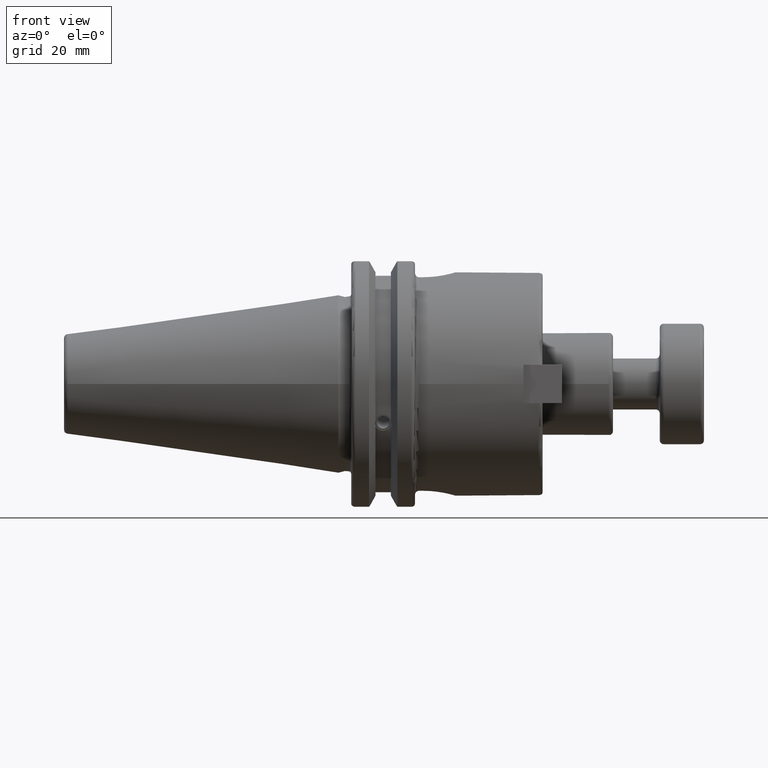
[diagram: clean part render]
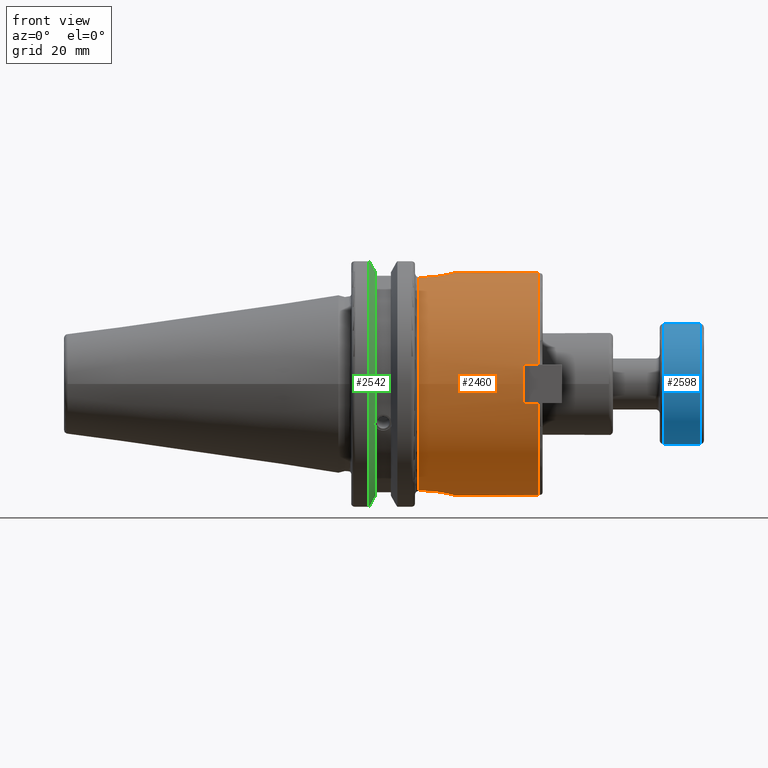
[diagram: same view with three faces highlighted in distinct colors, each labeled with its STEP entity id]
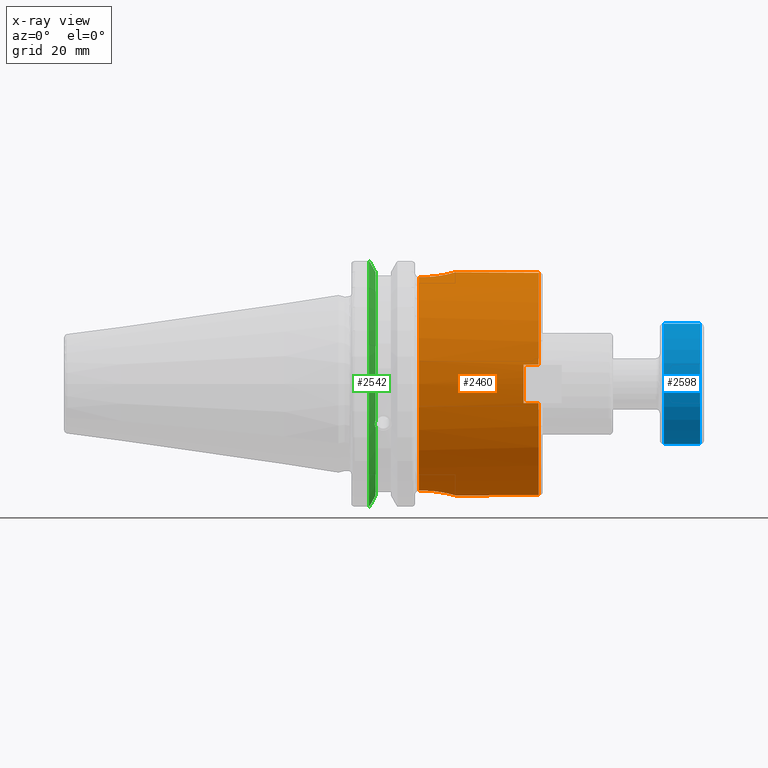
[diagram: x-ray of the same camera — body ghosted, the three highlighted faces saturated]
A machine part, front view with three faces highlighted in distinct colors.
The next image is the same camera in x-ray (body ghosted, the three faces saturated) — at least one of them is partly hidden behind the body in this view.
Their STEP definitions:

[orange] entity #2460 — the highlighted cylindrical surface (bore or boss wall) has radius 27.79 mm, axis along (1, 0, 0).
#112=CYLINDRICAL_SURFACE('',#2716,27.79);
#195=CIRCLE('',#2706,27.79);
#197=CIRCLE('',#2708,27.79);
#201=CIRCLE('',#2717,27.79);
#202=CIRCLE('',#2718,27.79);
#203=CIRCLE('',#2719,27.79);
#204=CIRCLE('',#2720,27.79);
#205=CIRCLE('',#2721,27.79);
#206=CIRCLE('',#2722,27.79);
#331=FACE_OUTER_BOUND('',#479,.T.);
#479=EDGE_LOOP('',(#1661,#1662,#1663,#1664,#1665,#1666,#1667,#1668,#1669,
#1670,#1671,#1672,#1673,#1674,#1675,#1676,#1677,#1678,#1679,#1680));
#646=LINE('',#3805,#810);
#651=LINE('',#3840,#815);
#653=LINE('',#3844,#817);
#654=LINE('',#3848,#818);
#655=LINE('',#3869,#819);
#656=LINE('',#3873,#820);
#657=LINE('',#3894,#821);
#658=LINE('',#3899,#822);
#659=LINE('',#3903,#823);
#810=VECTOR('',#3017,10.);
#815=VECTOR('',#3044,10.);
#817=VECTOR('',#3048,27.79);
#818=VECTOR('',#3051,10.);
#819=VECTOR('',#3052,10.);
#820=VECTOR('',#3055,10.);
#821=VECTOR('',#3056,10.);
#822=VECTOR('',#3061,10.);
#823=VECTOR('',#3064,10.);
#973=B_SPLINE_CURVE_WITH_KNOTS('',3,(#3850,#3851,#3852,#3853,#3854,#3855,
#3856,#3857,#3858,#3859,#3860,#3861,#3862,#3863,#3864,#3865,#3866,#3867),
 .UNSPECIFIED.,.F.,.F.,(4,2,2,2,2,2,2,2,4),(-2.48404790879586,-2.17349897513637,
-1.86295004147687,-1.5524869979374,-1.24202395439793,-0.931560910858459,
-0.621097867318987,-0.310548933659494,0.),.UNSPECIFIED.);
#974=B_SPLINE_CURVE_WITH_KNOTS('',3,(#3875,#3876,#3877,#3878,#3879,#3880,
#3881,#3882,#3883,#3884,#3885,#3886,#3887,#3888,#3889,#3890,#3891,#3892),
 .UNSPECIFIED.,.F.,.F.,(4,2,2,2,2,2,2,2,4),(-2.48404790879586,-2.17349897513637,
-1.86295004147687,-1.5524869979374,-1.24202395439793,-0.931560910858459,
-0.621097867318988,-0.310548933659494,0.),.UNSPECIFIED.);
#1012=VERTEX_POINT('',#3788);
#1015=VERTEX_POINT('',#3803);
#1016=VERTEX_POINT('',#3807);
#1018=VERTEX_POINT('',#3811);
#1023=VERTEX_POINT('',#3828);
#1025=VERTEX_POINT('',#3843);
#1026=VERTEX_POINT('',#3845);
#1027=VERTEX_POINT('',#3847);
#1028=VERTEX_POINT('',#3849);
#1029=VERTEX_POINT('',#3868);
#1030=VERTEX_POINT('',#3870);
#1031=VERTEX_POINT('',#3872);
#1032=VERTEX_POINT('',#3874);
#1033=VERTEX_POINT('',#3893);
#1034=VERTEX_POINT('',#3896);
#1035=VERTEX_POINT('',#3898);
#1036=VERTEX_POINT('',#3900);
#1037=VERTEX_POINT('',#3902);
#1263=EDGE_CURVE('',#1012,#1015,#646,.T.);
#1264=EDGE_CURVE('',#1015,#1016,#195,.T.);
#1267=EDGE_CURVE('',#1016,#1018,#197,.T.);
#1275=EDGE_CURVE('',#1018,#1023,#651,.T.);
#1277=EDGE_CURVE('',#1016,#1025,#653,.T.);
#1278=EDGE_CURVE('',#1026,#1025,#201,.T.);
#1279=EDGE_CURVE('',#1026,#1027,#654,.T.);
#1280=EDGE_CURVE('',#1027,#1028,#973,.T.);
#1281=EDGE_CURVE('',#1028,#1029,#655,.T.);
#1282=EDGE_CURVE('',#1030,#1029,#202,.T.);
#1283=EDGE_CURVE('',#1030,#1031,#656,.T.);
#1284=EDGE_CURVE('',#1031,#1032,#974,.T.);
#1285=EDGE_CURVE('',#1032,#1033,#657,.T.);
#1286=EDGE_CURVE('',#1025,#1033,#203,.T.);
#1287=EDGE_CURVE('',#1034,#1023,#204,.T.);
#1288=EDGE_CURVE('',#1034,#1035,#658,.T.);
#1289=EDGE_CURVE('',#1035,#1036,#205,.T.);
#1290=EDGE_CURVE('',#1036,#1037,#659,.T.);
#1291=EDGE_CURVE('',#1012,#1037,#206,.T.);
#1661=ORIENTED_EDGE('',*,*,#1263,.T.);
#1662=ORIENTED_EDGE('',*,*,#1264,.T.);
#1663=ORIENTED_EDGE('',*,*,#1277,.T.);
#1664=ORIENTED_EDGE('',*,*,#1278,.F.);
#1665=ORIENTED_EDGE('',*,*,#1279,.T.);
#1666=ORIENTED_EDGE('',*,*,#1280,.T.);
#1667=ORIENTED_EDGE('',*,*,#1281,.T.);
#1668=ORIENTED_EDGE('',*,*,#1282,.F.);
#1669=ORIENTED_EDGE('',*,*,#1283,.T.);
#1670=ORIENTED_EDGE('',*,*,#1284,.T.);
#1671=ORIENTED_EDGE('',*,*,#1285,.T.);
#1672=ORIENTED_EDGE('',*,*,#1286,.F.);
#1673=ORIENTED_EDGE('',*,*,#1277,.F.);
#1674=ORIENTED_EDGE('',*,*,#1267,.T.);
#1675=ORIENTED_EDGE('',*,*,#1275,.T.);
#1676=ORIENTED_EDGE('',*,*,#1287,.F.);
#1677=ORIENTED_EDGE('',*,*,#1288,.T.);
#1678=ORIENTED_EDGE('',*,*,#1289,.T.);
#1679=ORIENTED_EDGE('',*,*,#1290,.T.);
#1680=ORIENTED_EDGE('',*,*,#1291,.F.);
#2460=ADVANCED_FACE('',(#331),#112,.T.);
#2706=AXIS2_PLACEMENT_3D('',#3808,#3020,#3021);
#2708=AXIS2_PLACEMENT_3D('',#3813,#3025,#3026);
#2716=AXIS2_PLACEMENT_3D('',#3842,#3046,#3047);
#2717=AXIS2_PLACEMENT_3D('',#3846,#3049,#3050);
#2718=AXIS2_PLACEMENT_3D('',#3871,#3053,#3054);
#2719=AXIS2_PLACEMENT_3D('',#3895,#3057,#3058);
#2720=AXIS2_PLACEMENT_3D('',#3897,#3059,#3060);
#2721=AXIS2_PLACEMENT_3D('',#3901,#3062,#3063);
#2722=AXIS2_PLACEMENT_3D('',#3904,#3065,#3066);
#3017=DIRECTION('',(-1.,0.,0.));
#3020=DIRECTION('center_axis',(-1.,0.,0.));
#3021=DIRECTION('ref_axis',(0.,1.,0.));
#3025=DIRECTION('center_axis',(-1.,0.,0.));
#3026=DIRECTION('ref_axis',(0.,1.,0.));
#3044=DIRECTION('',(1.,0.,0.));
#3046=DIRECTION('center_axis',(1.,0.,0.));
#3047=DIRECTION('ref_axis',(0.,1.,0.));
#3048=DIRECTION('',(-1.,0.,0.));
#3049=DIRECTION('center_axis',(-1.,0.,0.));
#3050=DIRECTION('ref_axis',(0.,-1.,-1.22464679914735E-16));
#3051=DIRECTION('',(1.,0.,0.));
#3052=DIRECTION('',(-1.,0.,0.));
#3053=DIRECTION('center_axis',(-1.,0.,0.));
#3054=DIRECTION('ref_axis',(0.,1.,0.));
#3055=DIRECTION('',(1.,0.,0.));
#3056=DIRECTION('',(-1.,0.,0.));
#3057=DIRECTION('center_axis',(-1.,0.,0.));
#3058=DIRECTION('ref_axis',(0.,-1.,-1.22464679914735E-16));
#3059=DIRECTION('center_axis',(1.,0.,0.));
#3060=DIRECTION('ref_axis',(0.,-1.,1.83697019872103E-16));
#3061=DIRECTION('',(-1.,0.,0.));
#3062=DIRECTION('center_axis',(-1.,0.,0.));
#3063=DIRECTION('ref_axis',(0.,1.,0.));
#3064=DIRECTION('',(1.,0.,0.));
#3065=DIRECTION('center_axis',(1.,0.,0.));
#3066=DIRECTION('ref_axis',(0.,-1.,1.83697019872103E-16));
#3788=CARTESIAN_POINT('',(49.8,-27.3793078802222,-4.76));
#3803=CARTESIAN_POINT('',(46.03,-27.3793078802222,-4.76));
#3805=CARTESIAN_POINT('',(34.925,-27.3793078802222,-4.76));
#3807=CARTESIAN_POINT('',(46.03,-27.79,-3.40329345483049E-15));
#3808=CARTESIAN_POINT('Origin',(46.03,0.,0.));
#3811=CARTESIAN_POINT('',(46.03,-27.3793078802222,4.76));
#3813=CARTESIAN_POINT('Origin',(46.03,0.,0.));
#3828=CARTESIAN_POINT('',(49.8,-27.3793078802222,4.76));
#3840=CARTESIAN_POINT('',(34.925,-27.3793078802222,4.76));
#3842=CARTESIAN_POINT('Origin',(34.925,0.,0.));
#3843=CARTESIAN_POINT('',(20.05,-27.79,-3.40329345483049E-15));
#3844=CARTESIAN_POINT('',(34.925,-27.79,-3.40329345483049E-15));
#3845=CARTESIAN_POINT('',(20.05,-8.18999999999999,-26.5557526724437));
#3846=CARTESIAN_POINT('Origin',(20.05,0.,0.));
#3847=CARTESIAN_POINT('',(20.985,-8.19,-26.5557526724437));
#3848=CARTESIAN_POINT('',(34.925,-8.18999999999999,-26.5557526724437));
#3849=CARTESIAN_POINT('',(20.985,8.19000000000002,-26.5557526724437));
#3850=CARTESIAN_POINT('Ctrl Pts',(20.985,-8.19,-26.5557526724437));
#3851=CARTESIAN_POINT('Ctrl Pts',(22.0201631121983,-8.19,-26.5557526724437));
#3852=CARTESIAN_POINT('Ctrl Pts',(23.1197923487993,-7.98185829609769,-26.6226123097308));
#3853=CARTESIAN_POINT('Ctrl Pts',(25.1356211014446,-7.14421117880255,-26.8595194937095));
#3854=CARTESIAN_POINT('Ctrl Pts',(26.0524024884575,-6.51500658737815,-27.0256630340214));
#3855=CARTESIAN_POINT('Ctrl Pts',(27.4998064017128,-5.06760267412283,-27.3340606843464));
#3856=CARTESIAN_POINT('Ctrl Pts',(28.1291661371732,-4.15073970749414,-27.4969964420021));
#3857=CARTESIAN_POINT('Ctrl Pts',(28.9669276402387,-2.13461525757678,-27.7264651749869));
#3858=CARTESIAN_POINT('Ctrl Pts',(29.175,-1.03487681179824,-27.79));
#3859=CARTESIAN_POINT('Ctrl Pts',(29.175,1.03487681179824,-27.79));
#3860=CARTESIAN_POINT('Ctrl Pts',(28.9669276402387,2.13461525757678,-27.7264651749869));
#3861=CARTESIAN_POINT('Ctrl Pts',(28.1291661371732,4.15073970749413,-27.4969964420021));
#3862=CARTESIAN_POINT('Ctrl Pts',(27.4998064017128,5.06760267412283,-27.3340606843464));
#3863=CARTESIAN_POINT('Ctrl Pts',(26.0524024884575,6.51500658737815,-27.0256630340214));
#3864=CARTESIAN_POINT('Ctrl Pts',(25.1356211014446,7.14421117880255,-26.8595194937095));
#3865=CARTESIAN_POINT('Ctrl Pts',(23.1197923487993,7.98185829609769,-26.6226123097308));
#3866=CARTESIAN_POINT('Ctrl Pts',(22.0201631121983,8.19,-26.5557526724437));
#3867=CARTESIAN_POINT('Ctrl Pts',(20.985,8.19,-26.5557526724437));
#3868=CARTESIAN_POINT('',(20.05,8.19000000000002,-26.5557526724437));
#3869=CARTESIAN_POINT('',(34.925,8.19000000000002,-26.5557526724437));
#3870=CARTESIAN_POINT('',(20.05,8.19000000000001,26.5557526724437));
#3871=CARTESIAN_POINT('Origin',(20.05,0.,0.));
#3872=CARTESIAN_POINT('',(20.985,8.19,26.5557526724437));
#3873=CARTESIAN_POINT('',(34.925,8.19000000000001,26.5557526724437));
#3874=CARTESIAN_POINT('',(20.985,-8.19000000000003,26.5557526724437));
#3875=CARTESIAN_POINT('Ctrl Pts',(20.985,8.19000000000002,26.5557526724437));
#3876=CARTESIAN_POINT('Ctrl Pts',(22.0201631121983,8.19000000000002,26.5557526724437));
#3877=CARTESIAN_POINT('Ctrl Pts',(23.1197923487993,7.98185829609771,26.6226123097308));
#3878=CARTESIAN_POINT('Ctrl Pts',(25.1356211014446,7.14421117880257,26.8595194937095));
#3879=CARTESIAN_POINT('Ctrl Pts',(26.0524024884575,6.51500658737817,27.0256630340214));
#3880=CARTESIAN_POINT('Ctrl Pts',(27.4998064017128,5.06760267412285,27.3340606843464));
#3881=CARTESIAN_POINT('Ctrl Pts',(28.1291661371732,4.15073970749416,27.4969964420021));
#3882=CARTESIAN_POINT('Ctrl Pts',(28.9669276402386,2.1346152575768,27.7264651749869));
#3883=CARTESIAN_POINT('Ctrl Pts',(29.175,1.03487681179826,27.79));
#3884=CARTESIAN_POINT('Ctrl Pts',(29.175,-1.03487681179822,27.79));
#3885=CARTESIAN_POINT('Ctrl Pts',(28.9669276402386,-2.13461525757676,27.7264651749869));
#3886=CARTESIAN_POINT('Ctrl Pts',(28.1291661371732,-4.15073970749412,27.4969964420021));
#3887=CARTESIAN_POINT('Ctrl Pts',(27.4998064017128,-5.06760267412281,27.3340606843464));
#3888=CARTESIAN_POINT('Ctrl Pts',(26.0524024884575,-6.51500658737814,27.0256630340214));
#3889=CARTESIAN_POINT('Ctrl Pts',(25.1356211014446,-7.14421117880254,26.8595194937095));
#3890=CARTESIAN_POINT('Ctrl Pts',(23.1197923487993,-7.98185829609768,26.6226123097308));
#3891=CARTESIAN_POINT('Ctrl Pts',(22.0201631121983,-8.18999999999999,26.5557526724437));
#3892=CARTESIAN_POINT('Ctrl Pts',(20.985,-8.18999999999999,26.5557526724437));
#3893=CARTESIAN_POINT('',(20.05,-8.19000000000003,26.5557526724437));
#3894=CARTESIAN_POINT('',(34.925,-8.19000000000003,26.5557526724437));
#3895=CARTESIAN_POINT('Origin',(20.05,0.,0.));
#3896=CARTESIAN_POINT('',(49.8,27.3793078802222,4.76));
#3897=CARTESIAN_POINT('Origin',(49.8,0.,0.));
#3898=CARTESIAN_POINT('',(46.03,27.3793078802222,4.76));
#3899=CARTESIAN_POINT('',(34.925,27.3793078802222,4.76));
#3900=CARTESIAN_POINT('',(46.03,27.3793078802222,-4.76));
#3901=CARTESIAN_POINT('Origin',(46.03,0.,0.));
#3902=CARTESIAN_POINT('',(49.8,27.3793078802222,-4.76));
#3903=CARTESIAN_POINT('',(34.925,27.3793078802222,-4.76));
#3904=CARTESIAN_POINT('Origin',(49.8,0.,0.));

[blue] entity #2598 — the highlighted cylindrical surface (bore or boss wall) has radius 15 mm, axis along (-1, -0, -0).
#152=CYLINDRICAL_SURFACE('',#2995,15.);
#319=CIRCLE('',#2993,15.);
#320=CIRCLE('',#2994,15.);
#321=CIRCLE('',#2996,15.);
#322=CIRCLE('',#2997,15.);
#469=FACE_OUTER_BOUND('',#639,.T.);
#639=EDGE_LOOP('',(#2366,#2367,#2368,#2369,#2370,#2371));
#806=LINE('',#4974,#970);
#970=VECTOR('',#3759,15.);
#1254=VERTEX_POINT('',#4967);
#1255=VERTEX_POINT('',#4969);
#1256=VERTEX_POINT('',#4973);
#1257=VERTEX_POINT('',#4975);
#1627=EDGE_CURVE('',#1254,#1255,#319,.T.);
#1628=EDGE_CURVE('',#1255,#1254,#320,.T.);
#1629=EDGE_CURVE('',#1255,#1256,#806,.T.);
#1630=EDGE_CURVE('',#1257,#1256,#321,.T.);
#1631=EDGE_CURVE('',#1256,#1257,#322,.T.);
#2366=ORIENTED_EDGE('',*,*,#1628,.F.);
#2367=ORIENTED_EDGE('',*,*,#1629,.T.);
#2368=ORIENTED_EDGE('',*,*,#1630,.F.);
#2369=ORIENTED_EDGE('',*,*,#1631,.F.);
#2370=ORIENTED_EDGE('',*,*,#1629,.F.);
#2371=ORIENTED_EDGE('',*,*,#1627,.F.);
#2598=ADVANCED_FACE('',(#469),#152,.T.);
#2993=AXIS2_PLACEMENT_3D('',#4970,#3753,#3754);
#2994=AXIS2_PLACEMENT_3D('',#4971,#3755,#3756);
#2995=AXIS2_PLACEMENT_3D('',#4972,#3757,#3758);
#2996=AXIS2_PLACEMENT_3D('',#4976,#3760,#3761);
#2997=AXIS2_PLACEMENT_3D('',#4977,#3762,#3763);
#3753=DIRECTION('center_axis',(1.,0.,0.));
#3754=DIRECTION('ref_axis',(0.,-1.,1.83697019872103E-16));
#3755=DIRECTION('center_axis',(1.,0.,0.));
#3756=DIRECTION('ref_axis',(0.,-1.,1.83697019872103E-16));
#3757=DIRECTION('center_axis',(1.,0.,0.));
#3758=DIRECTION('ref_axis',(0.,1.,0.));
#3759=DIRECTION('',(-1.,0.,0.));
#3760=DIRECTION('center_axis',(-1.,0.,0.));
#3761=DIRECTION('ref_axis',(0.,-1.,1.83697019872103E-16));
#3762=DIRECTION('center_axis',(-1.,0.,0.));
#3763=DIRECTION('ref_axis',(0.,-1.,1.83697019872103E-16));
#4967=CARTESIAN_POINT('',(10.,-1.83697019872103E-15,15.));
#4969=CARTESIAN_POINT('',(10.,-15.,-1.83697019872103E-15));
#4970=CARTESIAN_POINT('Origin',(10.,0.,0.));
#4971=CARTESIAN_POINT('Origin',(10.,0.,0.));
#4972=CARTESIAN_POINT('Origin',(5.5,0.,0.));
#4973=CARTESIAN_POINT('',(1.,-15.,-1.83697019872103E-15));
#4974=CARTESIAN_POINT('',(5.5,-15.,-1.83697019872103E-15));
#4975=CARTESIAN_POINT('',(1.,-1.83697019872103E-15,15.));
#4976=CARTESIAN_POINT('Origin',(1.,0.,0.));
#4977=CARTESIAN_POINT('Origin',(1.,0.,0.));

[green] entity #2542 — the highlighted conical surface has half-angle 60 deg.
#62=(
BOUNDED_CURVE()
B_SPLINE_CURVE(2,(#4579,#4580,#4581),.UNSPECIFIED.,.F.,.F.)
B_SPLINE_CURVE_WITH_KNOTS((3,3),(0.,0.276549142797088),.UNSPECIFIED.)
CURVE()
GEOMETRIC_REPRESENTATION_ITEM()
RATIONAL_B_SPLINE_CURVE((1.,1.00095203903867,1.00031614444995))
REPRESENTATION_ITEM('')
);
#63=(
BOUNDED_CURVE()
B_SPLINE_CURVE(2,(#4591,#4592,#4593),.UNSPECIFIED.,.F.,.F.)
B_SPLINE_CURVE_WITH_KNOTS((3,3),(0.0550586467393311,0.331607789535851),
 .UNSPECIFIED.)
CURVE()
GEOMETRIC_REPRESENTATION_ITEM()
RATIONAL_B_SPLINE_CURVE((1.00031614445049,1.00095203904028,1.))
REPRESENTATION_ITEM('')
);
#64=(
BOUNDED_CURVE()
B_SPLINE_CURVE(2,(#4626,#4627,#4628),.UNSPECIFIED.,.F.,.F.)
B_SPLINE_CURVE_WITH_KNOTS((3,3),(0.,0.0639048713675838),.UNSPECIFIED.)
CURVE()
GEOMETRIC_REPRESENTATION_ITEM()
RATIONAL_B_SPLINE_CURVE((1.,1.00028444218292,1.00047644010588))
REPRESENTATION_ITEM('')
);
#65=(
BOUNDED_CURVE()
B_SPLINE_CURVE(2,(#4634,#4635,#4636),.UNSPECIFIED.,.F.,.F.)
B_SPLINE_CURVE_WITH_KNOTS((3,3),(0.329353533631213,0.393258405001024),
 .UNSPECIFIED.)
CURVE()
GEOMETRIC_REPRESENTATION_ITEM()
RATIONAL_B_SPLINE_CURVE((1.00047644010576,1.00028444218285,1.))
REPRESENTATION_ITEM('')
);
#164=CONICAL_SURFACE('',#2892,30.3546886482472,1.0471975511966);
#241=CIRCLE('',#2802,28.9593772964944);
#265=CIRCLE('',#2862,31.75);
#277=CIRCLE('',#2893,28.9593772964944);
#413=FACE_OUTER_BOUND('',#575,.T.);
#575=EDGE_LOOP('',(#2123,#2124,#2125,#2126,#2127,#2128,#2129,#2130));
#987=B_SPLINE_CURVE_WITH_KNOTS('',3,(#4195,#4196,#4197,#4198,#4199,#4200,
#4201,#4202,#4203,#4204,#4205,#4206,#4207,#4208),.UNSPECIFIED.,.F.,.F.,
(4,2,2,2,2,2,4),(0.451995700189025,0.464547828547662,0.504528771685168,
0.544509714822673,0.584490657960178,0.624471601097683,0.637023729456319),
 .UNSPECIFIED.);
#1086=VERTEX_POINT('',#4192);
#1087=VERTEX_POINT('',#4194);
#1104=VERTEX_POINT('',#4287);
#1164=VERTEX_POINT('',#4576);
#1165=VERTEX_POINT('',#4578);
#1168=VERTEX_POINT('',#4590);
#1172=VERTEX_POINT('',#4624);
#1173=VERTEX_POINT('',#4630);
#1364=EDGE_CURVE('',#1087,#1086,#987,.T.);
#1388=EDGE_CURVE('',#1087,#1104,#241,.T.);
#1473=EDGE_CURVE('',#1165,#1164,#62,.T.);
#1479=EDGE_CURVE('',#1168,#1104,#63,.T.);
#1487=EDGE_CURVE('',#1172,#1164,#64,.T.);
#1489=EDGE_CURVE('',#1172,#1173,#265,.T.);
#1490=EDGE_CURVE('',#1168,#1173,#65,.T.);
#1519=EDGE_CURVE('',#1165,#1086,#277,.T.);
#2123=ORIENTED_EDGE('',*,*,#1364,.T.);
#2124=ORIENTED_EDGE('',*,*,#1519,.F.);
#2125=ORIENTED_EDGE('',*,*,#1473,.T.);
#2126=ORIENTED_EDGE('',*,*,#1487,.F.);
#2127=ORIENTED_EDGE('',*,*,#1489,.T.);
#2128=ORIENTED_EDGE('',*,*,#1490,.F.);
#2129=ORIENTED_EDGE('',*,*,#1479,.T.);
#2130=ORIENTED_EDGE('',*,*,#1388,.F.);
#2542=ADVANCED_FACE('',(#413),#164,.T.);
#2802=AXIS2_PLACEMENT_3D('',#4288,#3259,#3260);
#2862=AXIS2_PLACEMENT_3D('',#4632,#3421,#3422);
#2892=AXIS2_PLACEMENT_3D('',#4721,#3492,#3493);
#2893=AXIS2_PLACEMENT_3D('',#4722,#3494,#3495);
#3259=DIRECTION('center_axis',(1.,0.,0.));
#3260=DIRECTION('ref_axis',(0.,0.,-1.));
#3421=DIRECTION('center_axis',(1.,0.,0.));
#3422=DIRECTION('ref_axis',(0.,0.,-1.));
#3492=DIRECTION('center_axis',(-1.,0.,0.));
#3493=DIRECTION('ref_axis',(0.,-1.,-1.22464679914735E-16));
#3494=DIRECTION('center_axis',(1.,0.,0.));
#3495=DIRECTION('ref_axis',(0.,0.,-1.));
#4192=CARTESIAN_POINT('',(9.2191,-27.4956274489925,-9.09043478536247));
#4194=CARTESIAN_POINT('',(9.21909999999999,-26.9060914640648,-10.7101715919071));
#4195=CARTESIAN_POINT('Ctrl Pts',(9.21909999999999,-26.9060914640648,-10.7101715919071));
#4196=CARTESIAN_POINT('Ctrl Pts',(9.20497959280038,-26.9406927482839,-10.6893765730703));
#4197=CARTESIAN_POINT('Ctrl Pts',(9.19150701821433,-26.9744191989197,-10.6676007180673));
#4198=CARTESIAN_POINT('Ctrl Pts',(9.13811855884095,-27.1113422433188,-10.5723885976054));
#4199=CARTESIAN_POINT('Ctrl Pts',(9.09998029158246,-27.2180531796526,-10.4801333026531));
#4200=CARTESIAN_POINT('Ctrl Pts',(9.04778935539424,-27.3968610665578,-10.2639559818059));
#4201=CARTESIAN_POINT('Ctrl Pts',(9.0341,-27.4684373304961,-10.139516340139));
#4202=CARTESIAN_POINT('Ctrl Pts',(9.0341,-27.559599249844,-9.8890510252165));
#4203=CARTESIAN_POINT('Ctrl Pts',(9.04778935539424,-27.5847569104121,-9.74771639360671));
#4204=CARTESIAN_POINT('Ctrl Pts',(9.09998029158246,-27.5867382255984,-9.46717946402648));
#4205=CARTESIAN_POINT('Ctrl Pts',(9.13811855884095,-27.5642934663232,-9.32791534028655));
#4206=CARTESIAN_POINT('Ctrl Pts',(9.19150701821433,-27.5206055003512,-9.16696618806878));
#4207=CARTESIAN_POINT('Ctrl Pts',(9.20497959280038,-27.5087667900418,-9.12860597076219));
#4208=CARTESIAN_POINT('Ctrl Pts',(9.21909999999999,-27.4956274489925,-9.09043478536247));
#4287=CARTESIAN_POINT('',(9.2191,-8.19,-27.7771386827498));
#4288=CARTESIAN_POINT('Origin',(9.2191,0.,0.));
#4576=CARTESIAN_POINT('',(7.88668530351255,-8.19,30.1755016258903));
#4578=CARTESIAN_POINT('',(9.2191,-8.19,27.7771386827498));
#4579=CARTESIAN_POINT('Ctrl Pts',(9.2191,-8.19,27.7771386827498));
#4580=CARTESIAN_POINT('Ctrl Pts',(8.58046356153227,-8.19,28.9303689539555));
#4581=CARTESIAN_POINT('Ctrl Pts',(7.88668530351255,-8.19,30.1755016258903));
#4590=CARTESIAN_POINT('',(7.88668530351256,-8.19,-30.1755016258903));
#4591=CARTESIAN_POINT('Ctrl Pts',(7.88668530351256,-8.19,-30.1755016258903));
#4592=CARTESIAN_POINT('Ctrl Pts',(8.5804635615239,-8.19,-28.9303689539705));
#4593=CARTESIAN_POINT('Ctrl Pts',(9.2191,-8.19,-27.7771386827498));
#4624=CARTESIAN_POINT('',(7.60793323092436,-8.67204822802685,30.5427254764662));
#4626=CARTESIAN_POINT('Ctrl Pts',(7.60793323092436,-8.67204822802685,30.5427254764662));
#4627=CARTESIAN_POINT('Ctrl Pts',(7.74899148121628,-8.42917748262643,30.3577067892629));
#4628=CARTESIAN_POINT('Ctrl Pts',(7.88668530351255,-8.19,30.1755016258903));
#4630=CARTESIAN_POINT('',(7.60793323092436,-8.67204822802685,-30.5427254764662));
#4632=CARTESIAN_POINT('Origin',(7.60793323092436,0.,0.));
#4634=CARTESIAN_POINT('Ctrl Pts',(7.88668530351256,-8.19,-30.1755016258903));
#4635=CARTESIAN_POINT('Ctrl Pts',(7.7489914812116,-8.42917748263465,-30.3577067892692));
#4636=CARTESIAN_POINT('Ctrl Pts',(7.60793323092436,-8.67204822802685,-30.5427254764662));
#4721=CARTESIAN_POINT('Origin',(8.41351661546217,0.,0.));
#4722=CARTESIAN_POINT('Origin',(9.2191,0.,0.));